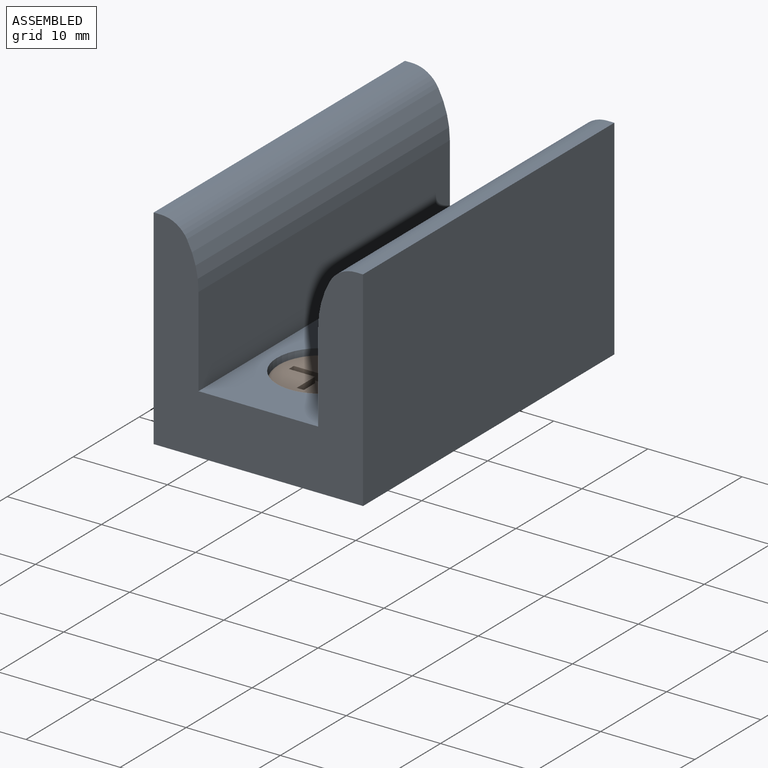
[diagram: assembled view]
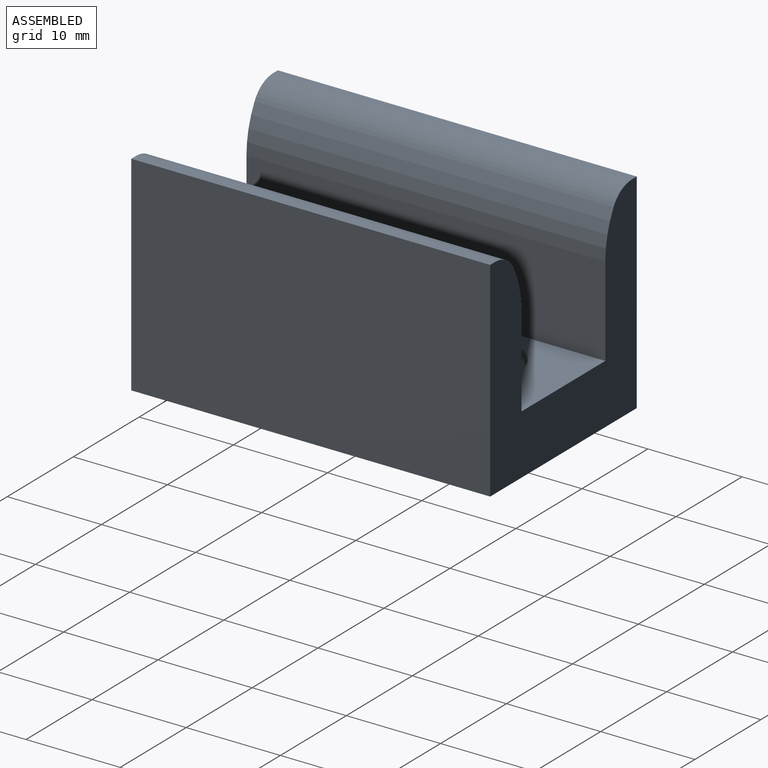
[diagram: assembled view, second angle]
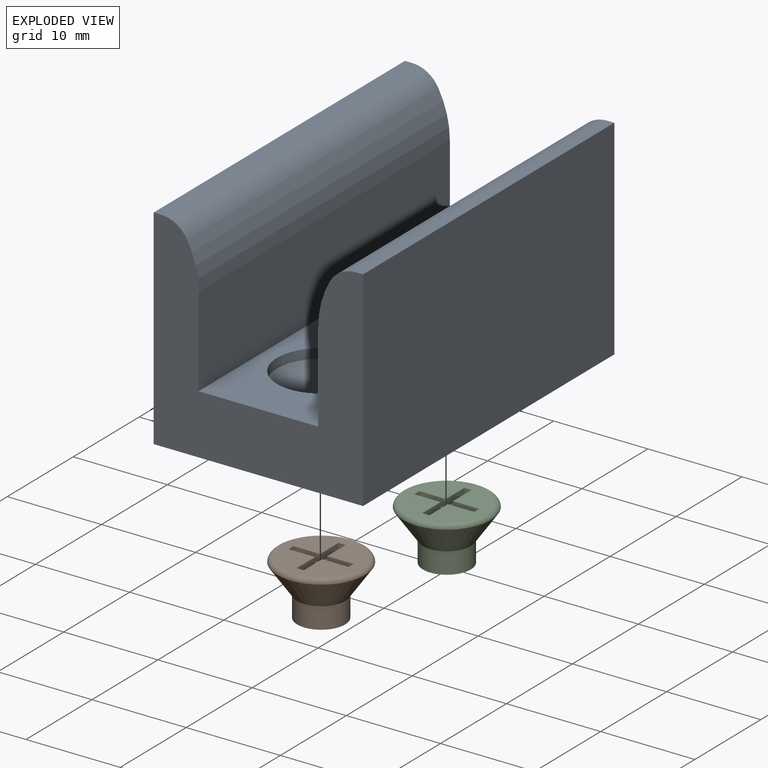
[diagram: exploded view]
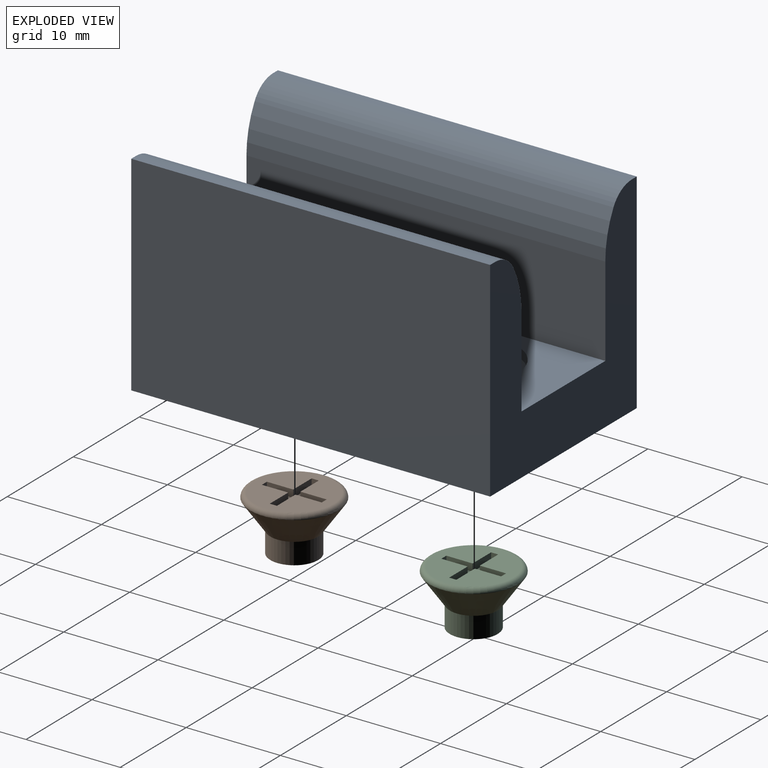
[diagram: exploded view, second angle]
ASSEMBLY  parts=3 mates=2
PART A: 20 faces, bbox 22.2x38.1x22.2 mm
  f0: plane 38.1x9.53mm, normal (1,0,0), area 362.9mm2, adj f1,f11,f12,f13
  f1: cylinder r=9.66mm len=38.1mm, axis (0,1,0), area 188.3mm2, adj f0,f2,f12,f13
  f2: cylinder r=3.17mm len=38.1mm, axis (0,1,0), area 128.1mm2, adj f1,f3,f12,f13
  f3: plane 38.1x0.76mm, normal (0,0,1), area 28.8mm2, adj f2,f4,f12,f13
  f4: plane 38.1x22.23mm, normal (-1,0,0), area 846.8mm2, adj f3,f5,f12,f13
  f5: plane 38.1x22.23mm, normal (0,0,-1), area 806.2mm2, adj f4,f6,f12,f13,f14,f17
  f6: plane 38.1x22.23mm, normal (1,0,0), area 846.8mm2, adj f5,f7,f12,f13
  f7: plane 38.1x0.76mm, normal (0,0,1), area 28.8mm2, adj f6,f8,f12,f13
  f8: cylinder r=3.17mm len=38.1mm, axis (0,1,0), area 128.1mm2, adj f7,f9,f12,f13
  f9: cylinder r=9.66mm len=38.1mm, axis (0,1,0), area 188.3mm2, adj f8,f10,f12,f13
  f10: plane 38.1x9.53mm, normal (-1,0,0), area 362.9mm2, adj f9,f11,f12,f13
  f11: plane 38.1x12.7mm, normal (0,0,1), area 345.1mm2, adj f0,f10,f12,f13,f16,f19
  f12: plane 22.23x22.23mm, normal (0,-1,0), area 281.9mm2, adj f0,f1,f2,f3,f4,f5,f6,f7
  f13: plane 22.23x22.23mm, normal (0,1,0), area 281.9mm2, adj f0,f1,f2,f3,f4,f5,f6,f7
  f14: cylinder r=2.54mm len=5.08mm, axis (0,0,1), area 35.9mm2, adj f5,f15
  f15: cone r=4.7mm half-angle=35deg, axis (0,0,1), area 85.6mm2, adj f14,f16
  f16: cylinder r=4.7mm len=9.4mm, axis (0,0,1), area 30mm2, adj f11,f15
  f17: cylinder r=2.54mm len=5.08mm, axis (0,0,1), area 35.9mm2, adj f5,f18
  f18: cone r=4.7mm half-angle=35deg, axis (0,0,1), area 85.6mm2, adj f17,f19
  f19: cylinder r=4.7mm len=9.4mm, axis (0,0,1), area 30mm2, adj f11,f18
PART B: 18 faces, bbox 10.2x10.2x5.8 mm
  f0: plane 8.38x8.38mm, normal (0,0,1), area 46.1mm2, adj f2,f5,f6,f7,f8,f9,f10,f11
  f1: cone r=4.7mm half-angle=35deg, axis (0,0,1), area 85.6mm2, adj f2,f4
  f2: torus R=4.19mm, axis (0,0,-1), area 22.6mm2, adj f0,f1
  f3: plane 5.08x5.08mm, normal (0,0,-1), area 20.3mm2, adj f4
  f4: cylinder r=2.54mm len=5.08mm, axis (0,0,-1), area 35.9mm2, adj f1,f3
  f5: plane 0.79x0.76mm, normal (0,1,0), area 0.6mm2, adj f0,f6,f16,f17
  f6: plane 2.79x0.79mm, normal (-1,0,0), area 2.2mm2, adj f0,f5,f7,f17
  f7: plane 2.79x0.79mm, normal (0,1,0), area 2.2mm2, adj f0,f6,f8,f17
  f8: plane 0.79x0.76mm, normal (-1,0,0), area 0.6mm2, adj f0,f7,f9,f17
  f9: plane 2.79x0.79mm, normal (0,-1,0), area 2.2mm2, adj f0,f8,f10,f17
  f10: plane 2.79x0.79mm, normal (-1,0,0), area 2.2mm2, adj f0,f9,f11,f17
  f11: plane 0.79x0.76mm, normal (0,-1,0), area 0.6mm2, adj f0,f10,f12,f17
  f12: plane 2.79x0.79mm, normal (1,0,0), area 2.2mm2, adj f0,f11,f13,f17
  f13: plane 2.79x0.79mm, normal (0,-1,0), area 2.2mm2, adj f0,f12,f14,f17
  f14: plane 0.79x0.76mm, normal (1,0,0), area 0.6mm2, adj f0,f13,f15,f17
  f15: plane 2.79x0.79mm, normal (0,1,0), area 2.2mm2, adj f0,f14,f16,f17
  f16: plane 2.79x0.79mm, normal (1,0,0), area 2.2mm2, adj f0,f5,f15,f17
  f17: plane 6.35x6.35mm, normal (0,0,1), area 9.1mm2, adj f5,f6,f7,f8,f9,f10,f11,f12
PART C: same geometry as B
PLACE A at identity
PLACE B t=(0,-9.52,0)mm
PLACE C t=(0,9.53,0)mm
MATE fastened C.f1 <-> A.f17  axis (0,0,-1) through (0,9.53,0)mm
MATE fastened A.f14 <-> B.f1  axis (0,0,-1) through (0,-9.52,0)mm
